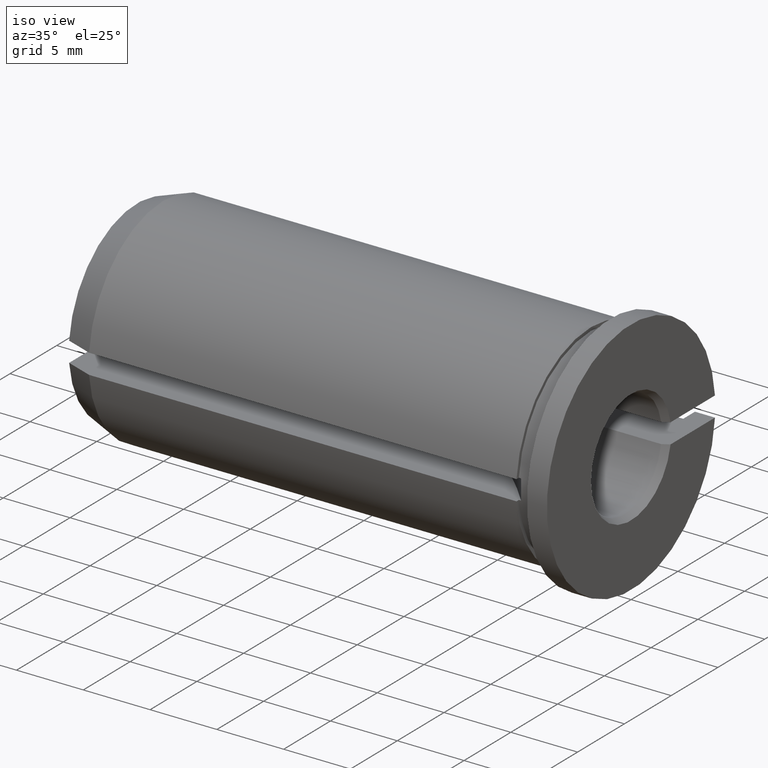
[diagram: clean part render]
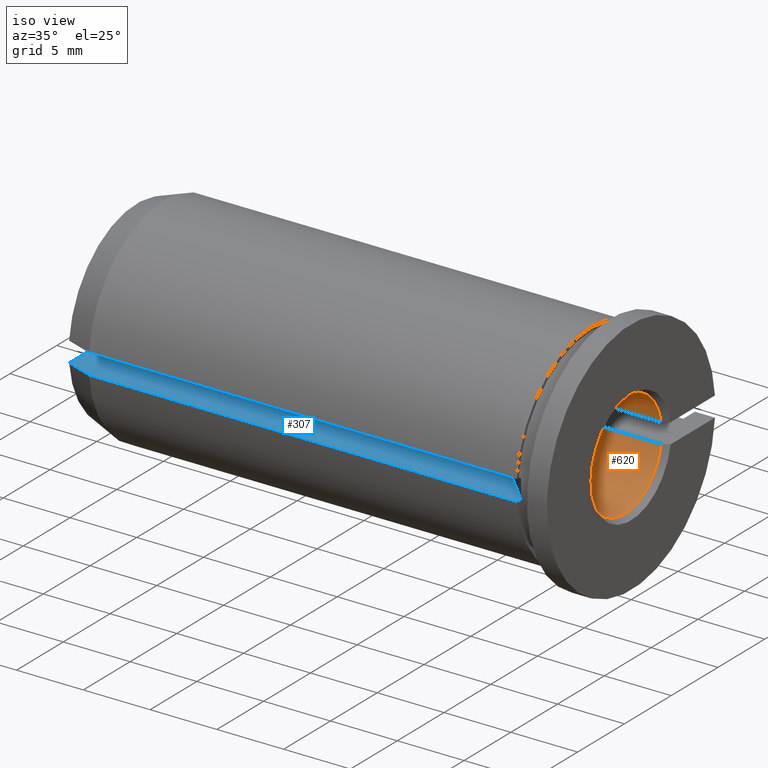
[diagram: same view with the hole feature highlighted: cylindrical wall and planar end face, labeled with their STEP entity ids]
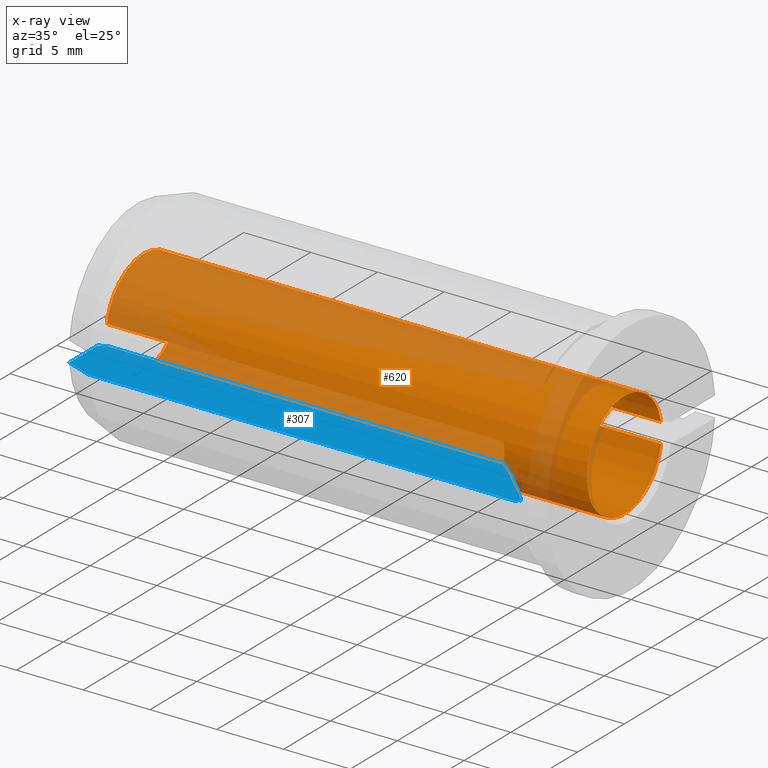
[diagram: x-ray of the same camera — body ghosted, the hole faces saturated]
A machine part, iso view. The highlighted faces form one hole feature of diameter 8 mm: the cylindrical wall (entity #620, orange) and its adjacent planar end face (entity #307, blue) — they share a circular edge in the B-rep.
The next image is the same camera in x-ray (body ghosted, the hole faces saturated) — the bore reads through the body.
Wall:
#5 = CARTESIAN_POINT ( 'NONE',  ( -30.29915502523357100, 4.000133462971036600, 0.2520466085258725700 ) ) ;
#11 = VERTEX_POINT ( 'NONE', #143 ) ;
#38 = AXIS2_PLACEMENT_3D ( 'NONE', #450, #504, #197 ) ;
#39 = CARTESIAN_POINT ( 'NONE',  ( -6.701176655096183800, -3.999865424803159500, -0.2562650930468137700 ) ) ;
#42 = CARTESIAN_POINT ( 'NONE',  ( -6.730935861621550700, -3.975733101721137300, -0.5054832203984677100 ) ) ;
#51 = ORIENTED_EDGE ( 'NONE', *, *, #107, .T. ) ;
#65 = ORIENTED_EDGE ( 'NONE', *, *, #452, .F. ) ;
#74 = VERTEX_POINT ( 'NONE', #653 ) ;
#82 = EDGE_CURVE ( 'NONE', #162, #168, #161, .T. ) ;
#99 = CARTESIAN_POINT ( 'NONE',  ( -38.58775536857143600, -3.929058411375427900, -0.7500000000000000000 ) ) ;
#107 = EDGE_CURVE ( 'NONE', #11, #74, #233, .T. ) ;
#130 = CARTESIAN_POINT ( 'NONE',  ( -38.58775536857143600, 3.929058411375427900, 0.7500000000000000000 ) ) ;
#138 = EDGE_CURVE ( 'NONE', #168, #444, #204, .T. ) ;
#143 = CARTESIAN_POINT ( 'NONE',  ( -30.21088099117843500, 3.929058411375426100, -0.7500000000000000000 ) ) ;
#145 = CARTESIAN_POINT ( 'NONE',  ( -6.789119008821558100, -3.929058411375429200, 0.7500000000000000000 ) ) ;
#151 = CARTESIAN_POINT ( 'NONE',  ( -30.26908032438750200, 3.975746086184807300, 0.5054151981101995300 ) ) ;
#153 = CARTESIAN_POINT ( 'NONE',  ( -30.26906413837843600, 3.975733101721137300, -0.5054832203984676000 ) ) ;
#155 = ORIENTED_EDGE ( 'NONE', *, *, #82, .T. ) ;
#160 = DIRECTION ( 'NONE',  ( -1.000000000000000000, -0.0000000000000000000, -0.0000000000000000000 ) ) ;
#161 = CIRCLE ( 'NONE', #181, 4.000000000000000000 ) ;
#162 = VERTEX_POINT ( 'NONE', #622 ) ;
#168 = VERTEX_POINT ( 'NONE', #513 ) ;
#181 = AXIS2_PLACEMENT_3D ( 'NONE', #302, #298, #408 ) ;
#191 = VERTEX_POINT ( 'NONE', #257 ) ;
#196 = ORIENTED_EDGE ( 'NONE', *, *, #219, .T. ) ;
#197 = DIRECTION ( 'NONE',  ( 0.0000000000000000000, 0.0000000000000000000, 1.000000000000000000 ) ) ;
#199 = CARTESIAN_POINT ( 'NONE',  ( -30.29882334490380600, 3.999865424803159500, -0.2562650930468135000 ) ) ;
#200 = EDGE_CURVE ( 'NONE', #254, #603, #630, .T. ) ;
#204 = LINE ( 'NONE', #99, #564 ) ;
#214 = LINE ( 'NONE', #640, #376 ) ;
#219 = EDGE_CURVE ( 'NONE', #254, #11, #290, .T. ) ;
#224 = CARTESIAN_POINT ( 'NONE',  ( -0.5000000000000817100, 3.929058411375441700, -0.7500000000000000000 ) ) ;
#233 = B_SPLINE_CURVE_WITH_KNOTS ( 'NONE', 3,
 ( #550, #153, #199, #5, #151, #249 ),
 .UNSPECIFIED., .F., .F.,
 ( 4, 2, 4 ),
 ( 1.084202172485504400E-019, 0.0007562263913862887500, 0.001512452782772577300 ),
 .UNSPECIFIED. ) ;
#240 = CARTESIAN_POINT ( 'NONE',  ( -6.700844974766410700, -4.000133462971036600, 0.2520466085258714100 ) ) ;
#249 = CARTESIAN_POINT ( 'NONE',  ( -30.21088099117843500, 3.929058411375426100, 0.7500000000000000000 ) ) ;
#252 = EDGE_LOOP ( 'NONE', ( #155, #470, #261, #361 ) ) ;
#254 = VERTEX_POINT ( 'NONE', #224 ) ;
#257 = CARTESIAN_POINT ( 'NONE',  ( -6.789119008821558100, -3.929058411375429200, 0.7500000000000000000 ) ) ;
#261 = ORIENTED_EDGE ( 'NONE', *, *, #567, .T. ) ;
#284 = CARTESIAN_POINT ( 'NONE',  ( -6.789119008821558100, -3.929058411375429200, -0.7500000000000000000 ) ) ;
#287 = CARTESIAN_POINT ( 'NONE',  ( -6.789119008821558100, -3.929058411375429200, -0.7500000000000000000 ) ) ;
#290 = LINE ( 'NONE', #410, #614 ) ;
#298 = DIRECTION ( 'NONE',  ( -1.000000000000000000, -0.0000000000000000000, -0.0000000000000000000 ) ) ;
#302 = CARTESIAN_POINT ( 'NONE',  ( -36.50000000000000000, 0.0000000000000000000, 0.0000000000000000000 ) ) ;
#311 = DIRECTION ( 'NONE',  ( -1.000000000000000000, -0.0000000000000000000, -0.0000000000000000000 ) ) ;
#314 = DIRECTION ( 'NONE',  ( 0.0000000000000000000, 0.0000000000000000000, 1.000000000000000000 ) ) ;
#329 = DIRECTION ( 'NONE',  ( -1.000000000000000000, -0.0000000000000000000, -0.0000000000000000000 ) ) ;
#339 = DIRECTION ( 'NONE',  ( 1.000000000000000000, 0.0000000000000000000, 0.0000000000000000000 ) ) ;
#350 = ORIENTED_EDGE ( 'NONE', *, *, #200, .F. ) ;
#361 = ORIENTED_EDGE ( 'NONE', *, *, #441, .F. ) ;
#364 = EDGE_LOOP ( 'NONE', ( #350, #196, #51, #65 ) ) ;
#376 = VECTOR ( 'NONE', #339, 1000.000000000000000 ) ;
#390 = CARTESIAN_POINT ( 'NONE',  ( -6.730919675612485200, -3.975746086184807300, 0.5054151981101997500 ) ) ;
#394 = FACE_OUTER_BOUND ( 'NONE', #364, .T. ) ;
#408 = DIRECTION ( 'NONE',  ( 0.0000000000000000000, 0.0000000000000000000, 1.000000000000000000 ) ) ;
#410 = CARTESIAN_POINT ( 'NONE',  ( -38.58775536857143600, 3.929058411375427900, -0.7500000000000000000 ) ) ;
#417 = DIRECTION ( 'NONE',  ( 1.000000000000000000, 0.0000000000000000000, 0.0000000000000000000 ) ) ;
#421 = FACE_OUTER_BOUND ( 'NONE', #252, .T. ) ;
#427 = B_SPLINE_CURVE_WITH_KNOTS ( 'NONE', 3,
 ( #287, #42, #39, #240, #390, #145 ),
 .UNSPECIFIED., .F., .F.,
 ( 4, 2, 4 ),
 ( 1.084202172485504400E-019, 0.0007562263913862878900, 0.001512452782772575600 ),
 .UNSPECIFIED. ) ;
#441 = EDGE_CURVE ( 'NONE', #162, #191, #214, .T. ) ;
#444 = VERTEX_POINT ( 'NONE', #284 ) ;
#450 = CARTESIAN_POINT ( 'NONE',  ( -38.58775536857143600, 0.0000000000000000000, 0.0000000000000000000 ) ) ;
#452 = EDGE_CURVE ( 'NONE', #603, #74, #485, .T. ) ;
#458 = AXIS2_PLACEMENT_3D ( 'NONE', #562, #311, #314 ) ;
#470 = ORIENTED_EDGE ( 'NONE', *, *, #138, .T. ) ;
#485 = LINE ( 'NONE', #130, #554 ) ;
#504 = DIRECTION ( 'NONE',  ( -1.000000000000000000, -0.0000000000000000000, -0.0000000000000000000 ) ) ;
#513 = CARTESIAN_POINT ( 'NONE',  ( -36.49999999999991500, -3.929058411375441700, -0.7500000000000000000 ) ) ;
#550 = CARTESIAN_POINT ( 'NONE',  ( -30.21088099117843500, 3.929058411375426100, -0.7500000000000000000 ) ) ;
#554 = VECTOR ( 'NONE', #329, 1000.000000000000000 ) ;
#562 = CARTESIAN_POINT ( 'NONE',  ( -0.5000000000000004400, 0.0000000000000000000, 0.0000000000000000000 ) ) ;
#564 = VECTOR ( 'NONE', #417, 1000.000000000000000 ) ;
#567 = EDGE_CURVE ( 'NONE', #444, #191, #427, .T. ) ;
#603 = VERTEX_POINT ( 'NONE', #654 ) ;
#604 = CYLINDRICAL_SURFACE ( 'NONE', #38, 4.000000000000000000 ) ;
#614 = VECTOR ( 'NONE', #160, 1000.000000000000000 ) ;
#620 = ADVANCED_FACE ( 'NONE', ( #394, #421 ), #604, .F. ) ;
#622 = CARTESIAN_POINT ( 'NONE',  ( -36.49999999999991500, -3.929058411375441700, 0.7500000000000000000 ) ) ;
#630 = CIRCLE ( 'NONE', #458, 4.000000000000000000 ) ;
#640 = CARTESIAN_POINT ( 'NONE',  ( -38.58775536857143600, -3.929058411375427900, 0.7500000000000000000 ) ) ;
#653 = CARTESIAN_POINT ( 'NONE',  ( -30.21088099117843500, 3.929058411375426100, 0.7500000000000000000 ) ) ;
#654 = CARTESIAN_POINT ( 'NONE',  ( -0.5000000000000817100, 3.929058411375441700, 0.7500000000000000000 ) ) ;
End face:
#13 = EDGE_CURVE ( 'NONE', #35, #378, #535, .T. ) ;
#32 = CARTESIAN_POINT ( 'NONE',  ( -37.00000000000000000, -4.222586222931610700, -0.7500000000000000000 ) ) ;
#34 = CARTESIAN_POINT ( 'NONE',  ( -36.49999999999991500, -3.929058411375441700, -0.7500000000000000000 ) ) ;
#35 = VERTEX_POINT ( 'NONE', #106 ) ;
#53 = AXIS2_PLACEMENT_3D ( 'NONE', #460, #511, #66 ) ;
#61 = VECTOR ( 'NONE', #574, 1000.000000000000000 ) ;
#63 = EDGE_LOOP ( 'NONE', ( #78, #86, #615, #316, #310, #625, #352, #538 ) ) ;
#66 = DIRECTION ( 'NONE',  ( -1.000000000000000000, 0.0000000000000000000, 0.0000000000000000000 ) ) ;
#70 = DIRECTION ( 'NONE',  ( -0.0000000000000000000, -1.000000000000000000, -0.0000000000000000000 ) ) ;
#75 = CARTESIAN_POINT ( 'NONE',  ( -3.000000000000000900, 7.750000000000000000, -0.7500000000000000000 ) ) ;
#78 = ORIENTED_EDGE ( 'NONE', *, *, #473, .F. ) ;
#86 = ORIENTED_EDGE ( 'NONE', *, *, #159, .T. ) ;
#99 = CARTESIAN_POINT ( 'NONE',  ( -38.58775536857143600, -3.929058411375427900, -0.7500000000000000000 ) ) ;
#106 = CARTESIAN_POINT ( 'NONE',  ( -34.99999999999999300, -7.964766161036994400, -0.7500000000000000000 ) ) ;
#120 = DIRECTION ( 'NONE',  ( -0.0000000000000000000, 0.0000000000000000000, -1.000000000000000000 ) ) ;
#122 = AXIS2_PLACEMENT_3D ( 'NONE', #526, #120, #519 ) ;
#127 = EDGE_CURVE ( 'NONE', #472, #396, #467, .T. ) ;
#137 = CARTESIAN_POINT ( 'NONE',  ( -36.66661458569266300, -4.026990247280057400, -0.7500000000000000000 ) ) ;
#138 = EDGE_CURVE ( 'NONE', #168, #444, #204, .T. ) ;
#147 = VECTOR ( 'NONE', #541, 1000.000000000000000 ) ;
#159 = EDGE_CURVE ( 'NONE', #594, #378, #592, .T. ) ;
#168 = VERTEX_POINT ( 'NONE', #513 ) ;
#184 = EDGE_CURVE ( 'NONE', #472, #444, #195, .T. ) ;
#185 = CARTESIAN_POINT ( 'NONE',  ( -37.00000000000000000, -4.222586222931610700, -0.7500000000000000000 ) ) ;
#189 = VERTEX_POINT ( 'NONE', #202 ) ;
#195 = CIRCLE ( 'NONE', #53, 31.50000000000000000 ) ;
#202 = CARTESIAN_POINT ( 'NONE',  ( -3.000000000000002700, -7.964766161036996200, -0.7500000000000000000 ) ) ;
#204 = LINE ( 'NONE', #99, #564 ) ;
#226 = VECTOR ( 'NONE', #70, 1000.000000000000000 ) ;
#235 = LINE ( 'NONE', #75, #61 ) ;
#260 = FACE_OUTER_BOUND ( 'NONE', #63, .T. ) ;
#270 = PLANE ( 'NONE',  #122 ) ;
#281 = CARTESIAN_POINT ( 'NONE',  ( -37.00000000000000000, -7.233280709968929600, -0.7500000000000000000 ) ) ;
#284 = CARTESIAN_POINT ( 'NONE',  ( -6.789119008821558100, -3.929058411375429200, -0.7500000000000000000 ) ) ;
#288 = CARTESIAN_POINT ( 'NONE',  ( -34.99999999999999300, -7.964766161036994400, -0.7500000000000000000 ) ) ;
#307 = ADVANCED_FACE ( 'NONE', ( #260 ), #270, .F. ) ;
#310 = ORIENTED_EDGE ( 'NONE', *, *, #368, .F. ) ;
#316 = ORIENTED_EDGE ( 'NONE', *, *, #497, .F. ) ;
#337 = CARTESIAN_POINT ( 'NONE',  ( -2.831950108100726100, -7.713624310270756000, -0.7500000000000000000 ) ) ;
#346 = DIRECTION ( 'NONE',  ( -1.000000000000000000, -0.0000000000000000000, -0.0000000000000000000 ) ) ;
#352 = ORIENTED_EDGE ( 'NONE', *, *, #184, .T. ) ;
#363 = VECTOR ( 'NONE', #346, 1000.000000000000000 ) ;
#368 = EDGE_CURVE ( 'NONE', #396, #189, #235, .T. ) ;
#378 = VERTEX_POINT ( 'NONE', #520 ) ;
#380 = CARTESIAN_POINT ( 'NONE',  ( -36.83328484345177900, -4.124826698394884700, -0.7500000000000000000 ) ) ;
#388 = CARTESIAN_POINT ( 'NONE',  ( -38.58775536857143600, -7.964766161036994400, -0.7500000000000000000 ) ) ;
#389 = CARTESIAN_POINT ( 'NONE',  ( -35.66670157318046800, -7.721033177172921000, -0.7500000000000000000 ) ) ;
#396 = VERTEX_POINT ( 'NONE', #438 ) ;
#414 = B_SPLINE_CURVE_WITH_KNOTS ( 'NONE', 3,
 ( #32, #380, #137, #34 ),
 .UNSPECIFIED., .F., .F.,
 ( 4, 4 ),
 ( 0.004644593513985361900, 0.005224383495892881400 ),
 .UNSPECIFIED. ) ;
#417 = DIRECTION ( 'NONE',  ( 1.000000000000000000, 0.0000000000000000000, 0.0000000000000000000 ) ) ;
#438 = CARTESIAN_POINT ( 'NONE',  ( -3.000000000000002700, -7.713624310270756000, -0.7500000000000000000 ) ) ;
#444 = VERTEX_POINT ( 'NONE', #284 ) ;
#445 = LINE ( 'NONE', #388, #147 ) ;
#460 = CARTESIAN_POINT ( 'NONE',  ( -26.49999999999999600, -28.50000000000000000, -0.7500000000000000000 ) ) ;
#467 = LINE ( 'NONE', #502, #363 ) ;
#472 = VERTEX_POINT ( 'NONE', #337 ) ;
#473 = EDGE_CURVE ( 'NONE', #594, #168, #414, .T. ) ;
#497 = EDGE_CURVE ( 'NONE', #189, #35, #445, .T. ) ;
#502 = CARTESIAN_POINT ( 'NONE',  ( -38.58775536857143600, -7.713624310270756000, -0.7500000000000000000 ) ) ;
#511 = DIRECTION ( 'NONE',  ( 0.0000000000000000000, 0.0000000000000000000, 1.000000000000000000 ) ) ;
#513 = CARTESIAN_POINT ( 'NONE',  ( -36.49999999999991500, -3.929058411375441700, -0.7500000000000000000 ) ) ;
#519 = DIRECTION ( 'NONE',  ( -1.000000000000000000, 0.0000000000000000000, 0.0000000000000000000 ) ) ;
#520 = CARTESIAN_POINT ( 'NONE',  ( -37.00000000000000000, -7.233280709968929600, -0.7500000000000000000 ) ) ;
#526 = CARTESIAN_POINT ( 'NONE',  ( -26.49999999999999600, -28.50000000000000000, -0.7500000000000000000 ) ) ;
#535 = B_SPLINE_CURVE_WITH_KNOTS ( 'NONE', 3,
 ( #288, #389, #596, #281 ),
 .UNSPECIFIED., .F., .F.,
 ( 4, 4 ),
 ( 0.009809443058718536300, 0.01193901348880657900 ),
 .UNSPECIFIED. ) ;
#538 = ORIENTED_EDGE ( 'NONE', *, *, #138, .F. ) ;
#541 = DIRECTION ( 'NONE',  ( -1.000000000000000000, -0.0000000000000000000, -0.0000000000000000000 ) ) ;
#564 = VECTOR ( 'NONE', #417, 1000.000000000000000 ) ;
#574 = DIRECTION ( 'NONE',  ( 0.0000000000000000000, -1.000000000000000000, 0.0000000000000000000 ) ) ;
#592 = LINE ( 'NONE', #618, #226 ) ;
#594 = VERTEX_POINT ( 'NONE', #185 ) ;
#596 = CARTESIAN_POINT ( 'NONE',  ( -36.33337187508387700, -7.477214299549897800, -0.7500000000000000000 ) ) ;
#615 = ORIENTED_EDGE ( 'NONE', *, *, #13, .F. ) ;
#618 = CARTESIAN_POINT ( 'NONE',  ( -37.00000000000000000, -14.38647846163204100, -0.7500000000000000000 ) ) ;
#625 = ORIENTED_EDGE ( 'NONE', *, *, #127, .F. ) ;